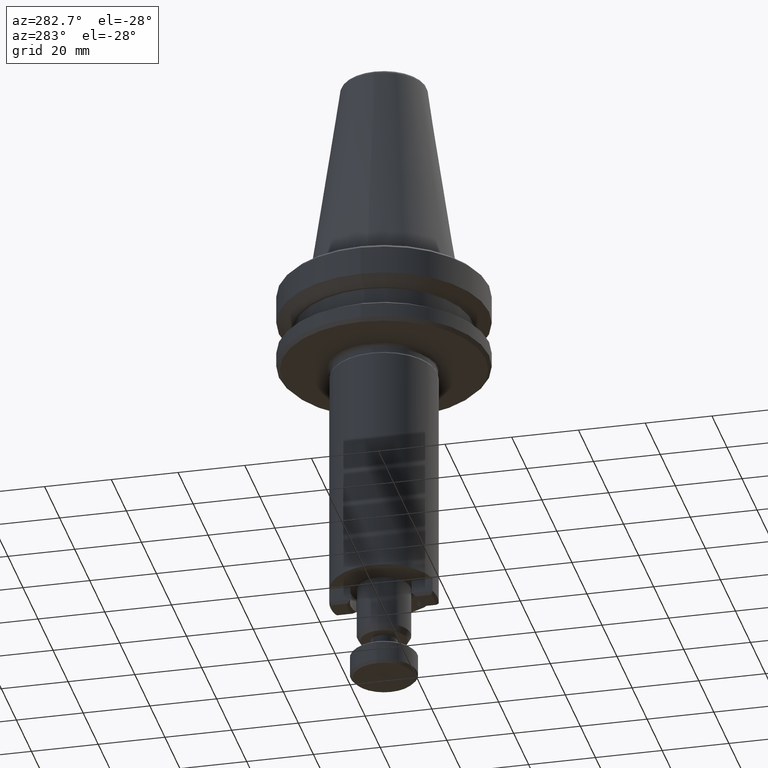
[diagram: clean part render]
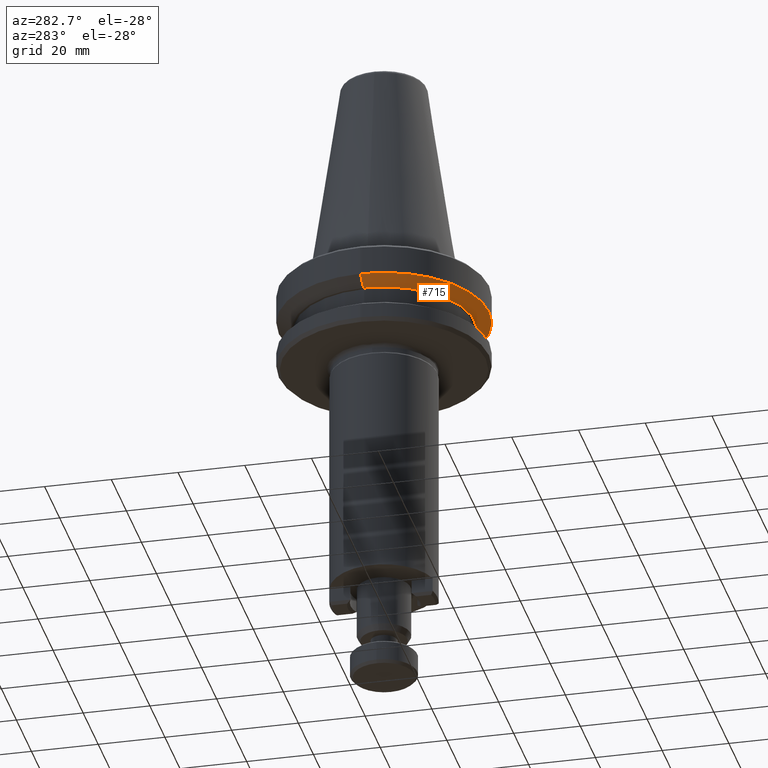
[diagram: same view with one face highlighted and labeled with its STEP entity id]
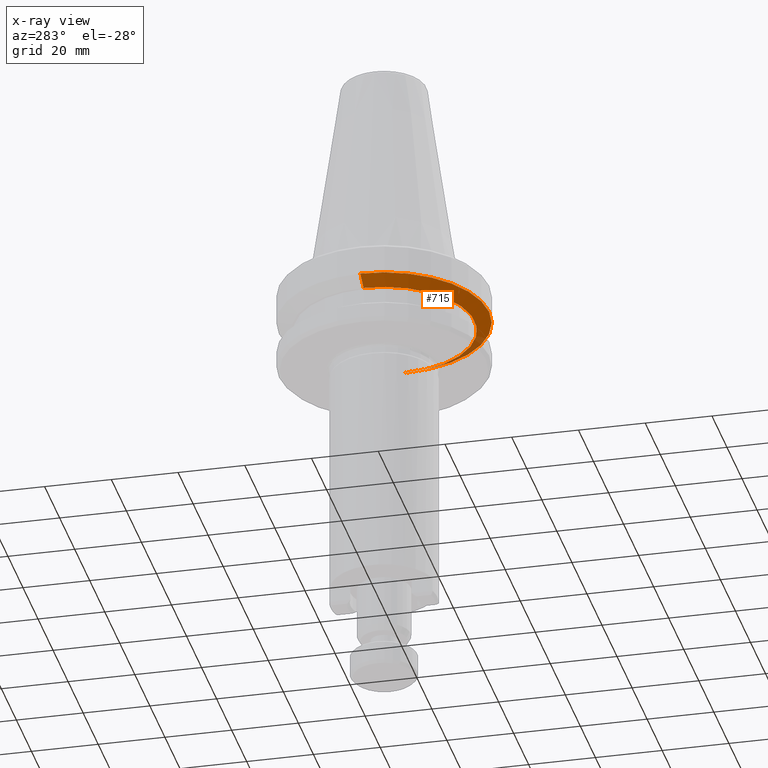
[diagram: x-ray of the same camera — body ghosted, the highlighted face saturated]
A machine part, auxiliary view. The second image highlights one B-rep face of the part: STEP entity #715.
The next image is the same camera in x-ray: the body ghosted, the highlighted face saturated — about 9% of this face is hidden behind the body in this view.
In plain terms, the highlighted conical surface has half-angle 60 deg.
Its self-contained STEP definition (entity closure, byte-faithful):
#47 = DIRECTION ( 'NONE',  ( -0.0000000000000000000, -0.0000000000000000000, -1.000000000000000000 ) ) ;
#108 = DIRECTION ( 'NONE',  ( 0.8660254037844388200, 0.0000000000000000000, 0.4999999999999997200 ) ) ;
#222 = DIRECTION ( 'NONE',  ( 0.0000000000000000000, 0.0000000000000000000, 1.000000000000000000 ) ) ;
#359 = CONICAL_SURFACE ( 'NONE', #1340, 27.16962701355880900, 1.047197551196598100 ) ;
#387 = DIRECTION ( 'NONE',  ( 1.000000000000000000, 0.0000000000000000000, 0.0000000000000000000 ) ) ;
#427 = VERTEX_POINT ( 'NONE', #1208 ) ;
#510 = ORIENTED_EDGE ( 'NONE', *, *, #699, .F. ) ;
#583 = CARTESIAN_POINT ( 'NONE',  ( 76.52683691674219800, 110.6694344999690100, 113.2610409950169800 ) ) ;
#699 = EDGE_CURVE ( 'NONE', #852, #2276, #1859, .T. ) ;
#715 = ADVANCED_FACE ( 'NONE', ( #2230 ), #359, .T. ) ;
#742 = CARTESIAN_POINT ( 'NONE',  ( 103.6964639303010100, 110.6694344999690100, 113.2610409950169800 ) ) ;
#852 = VERTEX_POINT ( 'NONE', #1862 ) ;
#854 = VECTOR ( 'NONE', #108, 1000.000000000000000 ) ;
#966 = VERTEX_POINT ( 'NONE', #1374 ) ;
#1071 = ORIENTED_EDGE ( 'NONE', *, *, #1684, .T. ) ;
#1093 = DIRECTION ( 'NONE',  ( -1.000000000000000000, 0.0000000000000000000, 0.0000000000000000000 ) ) ;
#1112 = CARTESIAN_POINT ( 'NONE',  ( 130.8660909438598000, 110.6694344999690100, 113.2610409950169800 ) ) ;
#1208 = CARTESIAN_POINT ( 'NONE',  ( 135.1964639249374600, 110.6694344999690100, 115.7611830013336300 ) ) ;
#1220 = CIRCLE ( 'NONE', #1776, 31.49999999463644300 ) ;
#1231 = AXIS2_PLACEMENT_3D ( 'NONE', #742, #1782, #1962 ) ;
#1319 = LINE ( 'NONE', #1112, #854 ) ;
#1340 = AXIS2_PLACEMENT_3D ( 'NONE', #1433, #222, #387 ) ;
#1356 = CARTESIAN_POINT ( 'NONE',  ( 76.52683691674219800, 110.6694344999690100, 113.2610409950169800 ) ) ;
#1374 = CARTESIAN_POINT ( 'NONE',  ( 72.19646393566456800, 110.6694344999690100, 115.7611830013336300 ) ) ;
#1433 = CARTESIAN_POINT ( 'NONE',  ( 103.6964639303010100, 110.6694344999690100, 113.2610409950169800 ) ) ;
#1444 = CARTESIAN_POINT ( 'NONE',  ( 103.6964639303010100, 110.6694344999690100, 115.7611830013336300 ) ) ;
#1469 = EDGE_LOOP ( 'NONE', ( #2195, #510, #1071, #1731 ) ) ;
#1475 = EDGE_CURVE ( 'NONE', #2276, #966, #2138, .T. ) ;
#1653 = DIRECTION ( 'NONE',  ( -0.8660254037844388200, 1.060575238724907200E-016, 0.4999999999999997200 ) ) ;
#1661 = VECTOR ( 'NONE', #1653, 1000.000000000000000 ) ;
#1684 = EDGE_CURVE ( 'NONE', #852, #427, #1319, .T. ) ;
#1731 = ORIENTED_EDGE ( 'NONE', *, *, #1756, .T. ) ;
#1756 = EDGE_CURVE ( 'NONE', #427, #966, #1220, .T. ) ;
#1776 = AXIS2_PLACEMENT_3D ( 'NONE', #1444, #47, #1093 ) ;
#1782 = DIRECTION ( 'NONE',  ( -0.0000000000000000000, -0.0000000000000000000, -1.000000000000000000 ) ) ;
#1859 = CIRCLE ( 'NONE', #1231, 27.16962701355880900 ) ;
#1862 = CARTESIAN_POINT ( 'NONE',  ( 130.8660909438598000, 110.6694344999690100, 113.2610409950169800 ) ) ;
#1962 = DIRECTION ( 'NONE',  ( -1.000000000000000000, 0.0000000000000000000, 0.0000000000000000000 ) ) ;
#2138 = LINE ( 'NONE', #1356, #1661 ) ;
#2195 = ORIENTED_EDGE ( 'NONE', *, *, #1475, .F. ) ;
#2230 = FACE_OUTER_BOUND ( 'NONE', #1469, .T. ) ;
#2276 = VERTEX_POINT ( 'NONE', #583 ) ;